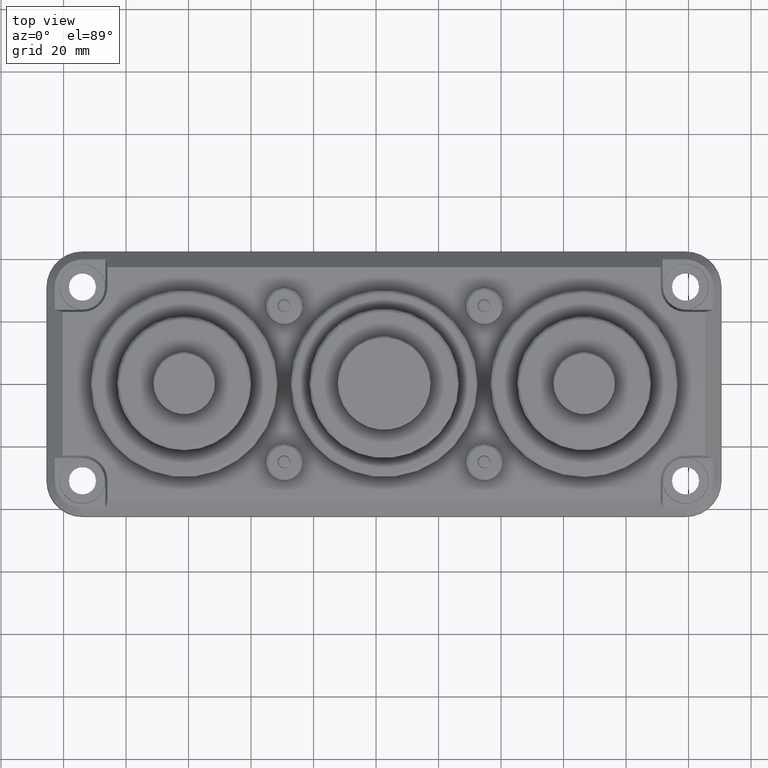
[diagram: clean part render]
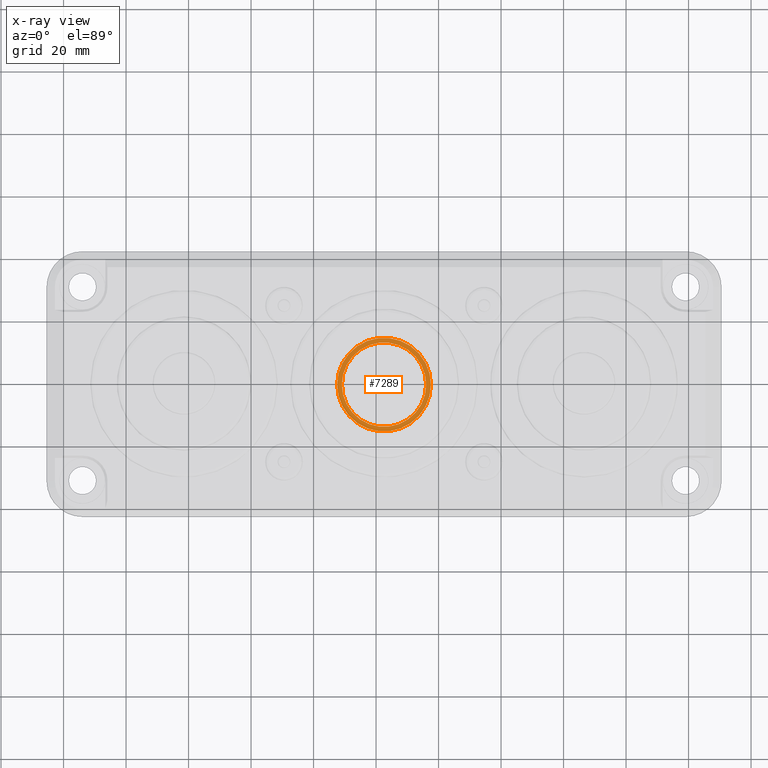
[diagram: x-ray — body ghosted, one internal face saturated and labeled with its STEP entity id]
A machine part, top view, then the same camera in x-ray: the body is ghosted and one INTERNAL B-rep face — a face not visible from any outside direction — is saturated and labeled: STEP entity #7289.
In plain terms, the highlighted planar face has unit normal (0, 0, 1).
Its self-contained STEP definition (entity closure, byte-faithful):
#143 = CARTESIAN_POINT ( 'NONE',  ( 122.5381961790797600, 259.8491220038597500, -8.499999999999996400 ) ) ;
#173 = CIRCLE ( 'NONE', #2387, 14.98658727776081000 ) ;
#271 = DIRECTION ( 'NONE',  ( 1.000000000000000000, 0.0000000000000000000, 0.0000000000000000000 ) ) ;
#371 = DIRECTION ( 'NONE',  ( 0.0000000000000000000, 0.0000000000000000000, 1.000000000000000000 ) ) ;
#993 = CIRCLE ( 'NONE', #3227, 13.49999999999999800 ) ;
#1024 = ORIENTED_EDGE ( 'NONE', *, *, #3927, .T. ) ;
#1111 = CARTESIAN_POINT ( 'NONE',  ( 150.0381961790797600, 259.8491220038597500, -8.500000000000000000 ) ) ;
#1391 = FACE_OUTER_BOUND ( 'NONE', #6228, .T. ) ;
#1819 = AXIS2_PLACEMENT_3D ( 'NONE', #6746, #9633, #2896 ) ;
#2351 = ORIENTED_EDGE ( 'NONE', *, *, #5500, .T. ) ;
#2372 = CARTESIAN_POINT ( 'NONE',  ( 137.5247834568405700, 259.8491220038597500, -8.499999999999996400 ) ) ;
#2387 = AXIS2_PLACEMENT_3D ( 'NONE', #143, #5145, #8274 ) ;
#2896 = DIRECTION ( 'NONE',  ( -1.000000000000000000, 0.0000000000000000000, 0.0000000000000000000 ) ) ;
#3081 = ORIENTED_EDGE ( 'NONE', *, *, #6376, .T. ) ;
#3227 = AXIS2_PLACEMENT_3D ( 'NONE', #6900, #6975, #7617 ) ;
#3849 = CIRCLE ( 'NONE', #1819, 13.49999999999999800 ) ;
#3869 = CARTESIAN_POINT ( 'NONE',  ( 109.0381961790797600, 259.8491220038597500, -8.500000000000001800 ) ) ;
#3927 = EDGE_CURVE ( 'NONE', #6274, #9369, #3849, .T. ) ;
#3993 = CARTESIAN_POINT ( 'NONE',  ( 122.5381961790797600, 259.8491220038597500, -8.499999999999996400 ) ) ;
#4051 = DIRECTION ( 'NONE',  ( 0.0000000000000000000, -0.0000000000000000000, 1.000000000000000000 ) ) ;
#4350 = CARTESIAN_POINT ( 'NONE',  ( 136.0381961790797900, 259.8491220038597500, -8.500000000000001800 ) ) ;
#4867 = EDGE_LOOP ( 'NONE', ( #1024, #3081 ) ) ;
#5145 = DIRECTION ( 'NONE',  ( 0.0000000000000000000, -0.0000000000000000000, 1.000000000000000000 ) ) ;
#5154 = ORIENTED_EDGE ( 'NONE', *, *, #5267, .T. ) ;
#5267 = EDGE_CURVE ( 'NONE', #6736, #6210, #173, .T. ) ;
#5500 = EDGE_CURVE ( 'NONE', #6210, #6736, #7751, .T. ) ;
#5662 = DIRECTION ( 'NONE',  ( 1.000000000000000000, 0.0000000000000000000, -0.0000000000000000000 ) ) ;
#5694 = CARTESIAN_POINT ( 'NONE',  ( 107.5516089013189700, 259.8491220038597500, -8.499999999999996400 ) ) ;
#5823 = AXIS2_PLACEMENT_3D ( 'NONE', #1111, #371, #5662 ) ;
#6210 = VERTEX_POINT ( 'NONE', #2372 ) ;
#6228 = EDGE_LOOP ( 'NONE', ( #2351, #5154 ) ) ;
#6274 = VERTEX_POINT ( 'NONE', #3869 ) ;
#6376 = EDGE_CURVE ( 'NONE', #9369, #6274, #993, .T. ) ;
#6736 = VERTEX_POINT ( 'NONE', #5694 ) ;
#6746 = CARTESIAN_POINT ( 'NONE',  ( 122.5381961790797600, 259.8491220038597500, -8.500000000000001800 ) ) ;
#6900 = CARTESIAN_POINT ( 'NONE',  ( 122.5381961790797600, 259.8491220038597500, -8.500000000000001800 ) ) ;
#6975 = DIRECTION ( 'NONE',  ( 0.0000000000000000000, 0.0000000000000000000, -1.000000000000000000 ) ) ;
#7227 = AXIS2_PLACEMENT_3D ( 'NONE', #3993, #4051, #271 ) ;
#7289 = ADVANCED_FACE ( 'NONE', ( #1391, #9485 ), #7414, .T. ) ;
#7414 = PLANE ( 'NONE',  #5823 ) ;
#7617 = DIRECTION ( 'NONE',  ( -1.000000000000000000, 0.0000000000000000000, 0.0000000000000000000 ) ) ;
#7751 = CIRCLE ( 'NONE', #7227, 14.98658727776081000 ) ;
#8274 = DIRECTION ( 'NONE',  ( 1.000000000000000000, 0.0000000000000000000, 0.0000000000000000000 ) ) ;
#9369 = VERTEX_POINT ( 'NONE', #4350 ) ;
#9485 = FACE_BOUND ( 'NONE', #4867, .T. ) ;
#9633 = DIRECTION ( 'NONE',  ( 0.0000000000000000000, 0.0000000000000000000, -1.000000000000000000 ) ) ;